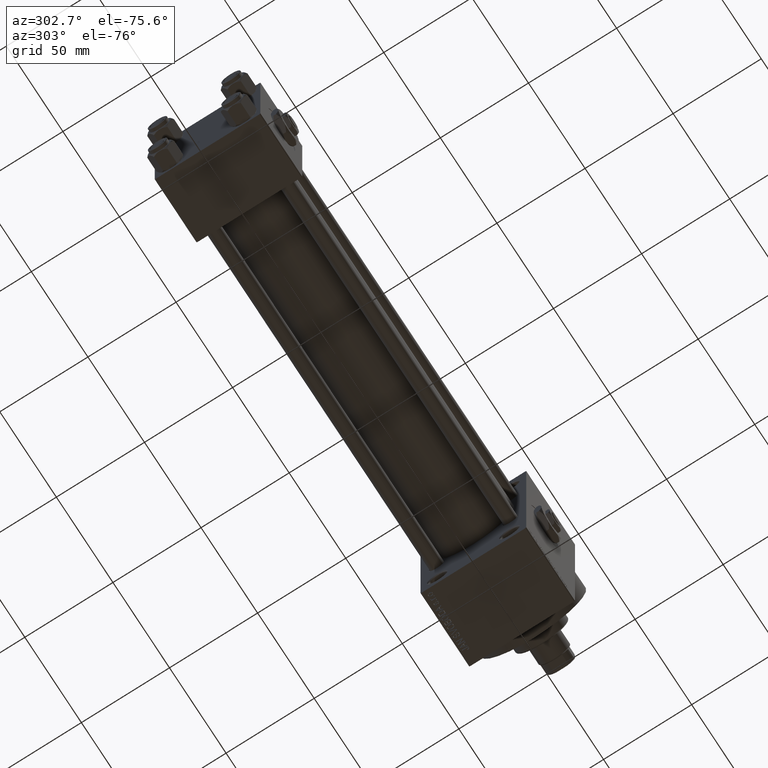
[diagram: clean part render]
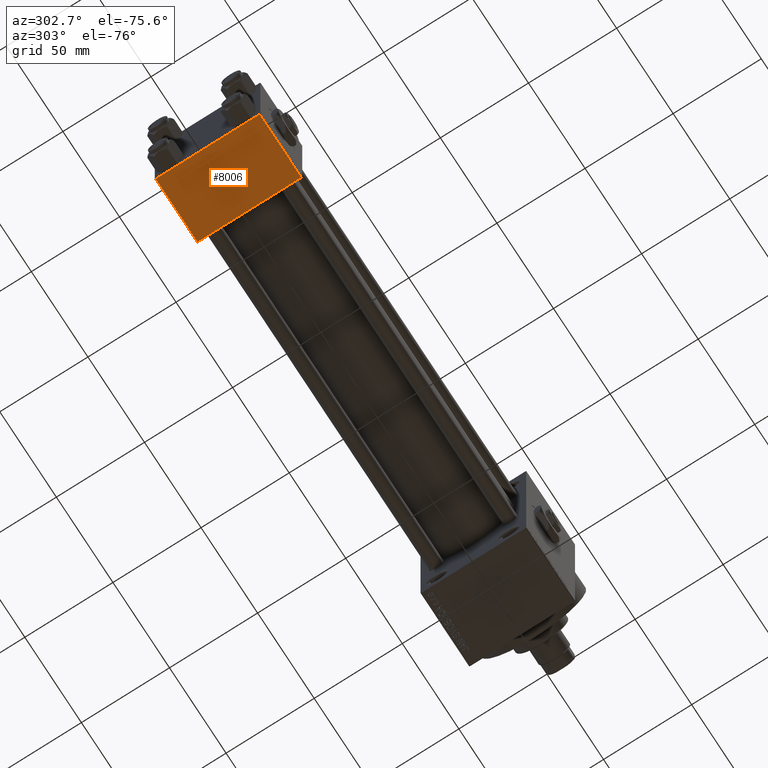
[diagram: same view with one face highlighted and labeled with its STEP entity id]
A machine part, auxiliary view. The second image highlights one B-rep face of the part: STEP entity #8006.
In plain terms, the highlighted planar face has unit normal (0, 0, -1).
Its self-contained STEP definition (entity closure, byte-faithful):
#5622 = VECTOR ( 'NONE', #16253, 1000.000000000000000 ) ;
#6859 = FACE_OUTER_BOUND ( 'NONE', #9071, .T. ) ;
#7922 = DIRECTION ( 'NONE',  ( 0.000000000000000000, -1.000000000000000000, -1.156482317317871725E-16 ) ) ;
#8006 = ADVANCED_FACE ( 'NONE', ( #6859 ), #49151, .T. ) ;
#9071 = EDGE_LOOP ( 'NONE', ( #11061, #16940, #28049, #13978 ) ) ;
#10593 = DIRECTION ( 'NONE',  ( -1.000000000000000000, 0.000000000000000000, 0.000000000000000000 ) ) ;
#11061 = ORIENTED_EDGE ( 'NONE', *, *, #40726, .F. ) ;
#13978 = ORIENTED_EDGE ( 'NONE', *, *, #47025, .T. ) ;
#14108 = CARTESIAN_POINT ( 'NONE',  ( 0.000000000000000000, -29.50000000000001066, -30.00000000000000711 ) ) ;
#14671 = CARTESIAN_POINT ( 'NONE',  ( 0.000000000000000000, 29.49999999999997868, -30.00000000000000000 ) ) ;
#16253 = DIRECTION ( 'NONE',  ( 1.000000000000000000, 0.000000000000000000, 0.000000000000000000 ) ) ;
#16940 = ORIENTED_EDGE ( 'NONE', *, *, #24540, .T. ) ;
#19089 = DIRECTION ( 'NONE',  ( 0.000000000000000000, 1.156482317317871725E-16, -1.000000000000000000 ) ) ;
#20765 = CARTESIAN_POINT ( 'NONE',  ( 37.00000000000000000, 29.49999999999997868, -30.00000000000000000 ) ) ;
#22202 = LINE ( 'NONE', #22696, #32777 ) ;
#22696 = CARTESIAN_POINT ( 'NONE',  ( 37.00000000000000000, 29.99999999999999289, -30.00000000000000000 ) ) ;
#24344 = VERTEX_POINT ( 'NONE', #36847 ) ;
#24465 = AXIS2_PLACEMENT_3D ( 'NONE', #29895, #19089, #45891 ) ;
#24540 = EDGE_CURVE ( 'NONE', #47847, #24344, #46813, .T. ) ;
#26561 = VECTOR ( 'NONE', #48912, 1000.000000000000000 ) ;
#28049 = ORIENTED_EDGE ( 'NONE', *, *, #36155, .T. ) ;
#29656 = LINE ( 'NONE', #36908, #26561 ) ;
#29895 = CARTESIAN_POINT ( 'NONE',  ( 37.00000000000000000, 29.99999999999999289, -30.00000000000000000 ) ) ;
#32777 = VECTOR ( 'NONE', #7922, 1000.000000000000000 ) ;
#34467 = CARTESIAN_POINT ( 'NONE',  ( 37.00000000000000000, -29.50000000000000000, -30.00000000000000711 ) ) ;
#36155 = EDGE_CURVE ( 'NONE', #24344, #43549, #22202, .T. ) ;
#36847 = CARTESIAN_POINT ( 'NONE',  ( 37.00000000000000000, 29.49999999999997868, -30.00000000000000000 ) ) ;
#36908 = CARTESIAN_POINT ( 'NONE',  ( 0.000000000000000000, 29.99999999999999289, -30.00000000000000000 ) ) ;
#37882 = LINE ( 'NONE', #14108, #44261 ) ;
#40726 = EDGE_CURVE ( 'NONE', #47847, #42125, #29656, .T. ) ;
#42125 = VERTEX_POINT ( 'NONE', #47669 ) ;
#43549 = VERTEX_POINT ( 'NONE', #34467 ) ;
#44261 = VECTOR ( 'NONE', #10593, 1000.000000000000000 ) ;
#45891 = DIRECTION ( 'NONE',  ( 0.000000000000000000, 1.000000000000000000, 1.156482317317871725E-16 ) ) ;
#46813 = LINE ( 'NONE', #20765, #5622 ) ;
#47025 = EDGE_CURVE ( 'NONE', #43549, #42125, #37882, .T. ) ;
#47669 = CARTESIAN_POINT ( 'NONE',  ( 0.000000000000000000, -29.50000000000000000, -30.00000000000000711 ) ) ;
#47847 = VERTEX_POINT ( 'NONE', #14671 ) ;
#48912 = DIRECTION ( 'NONE',  ( 0.000000000000000000, -1.000000000000000000, -1.156482317317871725E-16 ) ) ;
#49151 = PLANE ( 'NONE',  #24465 ) ;